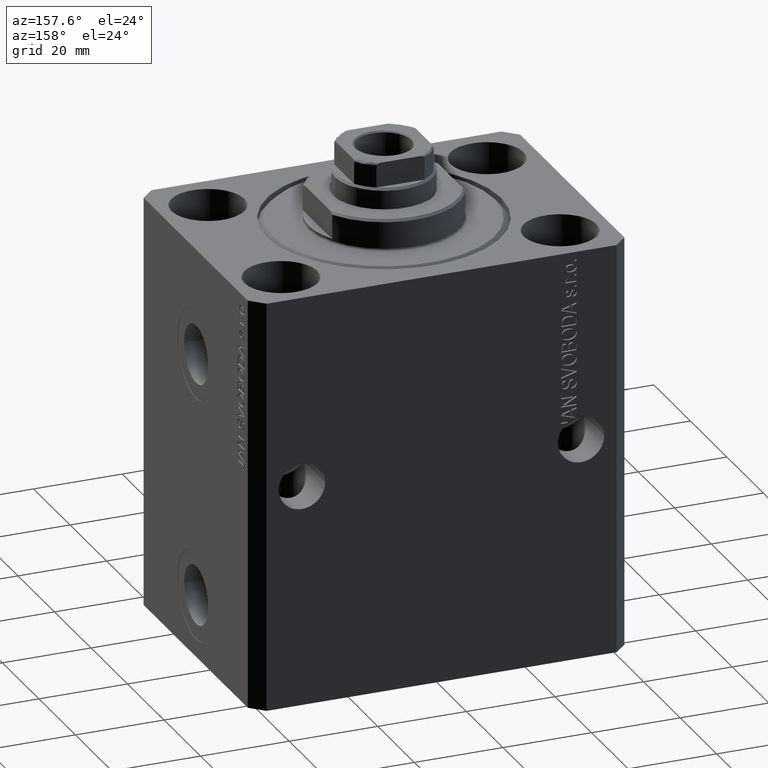
[diagram: clean part render]
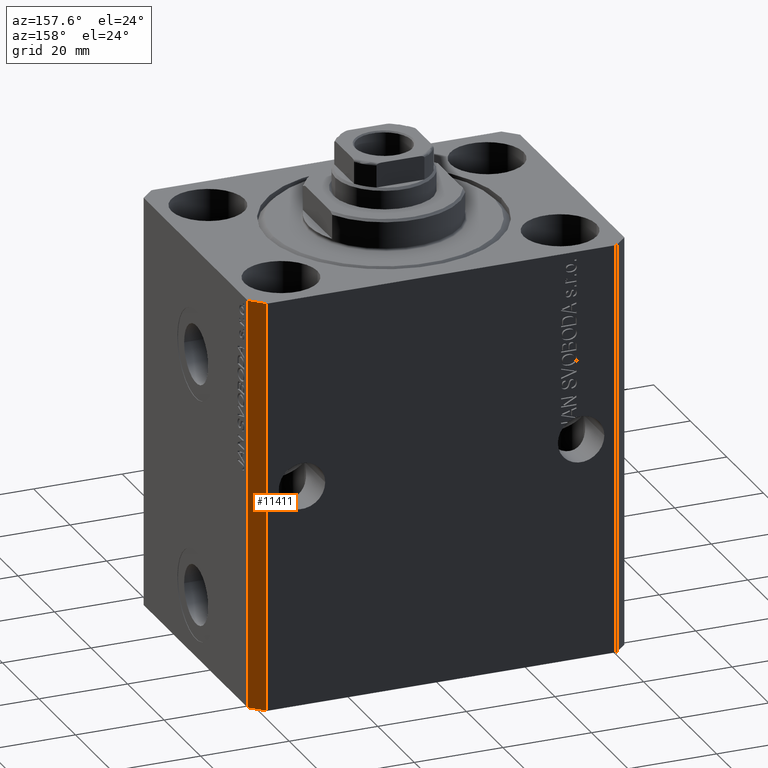
[diagram: same view with one face highlighted and labeled with its STEP entity id]
A machine part, auxiliary view. The second image highlights one B-rep face of the part: STEP entity #11411.
In plain terms, the highlighted planar face has unit normal (0.7071, 0.7071, 0).
Its self-contained STEP definition (entity closure, byte-faithful):
#197 = FACE_OUTER_BOUND ( 'NONE', #30869, .T. ) ;
#737 = VECTOR ( 'NONE', #21127, 1000.000000000000114 ) ;
#1114 = ORIENTED_EDGE ( 'NONE', *, *, #1553, .T. ) ;
#1553 = EDGE_CURVE ( 'NONE', #7915, #21331, #17737, .T. ) ;
#3417 = DIRECTION ( 'NONE',  ( 0.7071067811865594521, 0.7071067811865355823, -0.000000000000000000 ) ) ;
#5642 = CARTESIAN_POINT ( 'NONE',  ( 42.50000000000051870, 28.49999999999995381, -93.00000000000000000 ) ) ;
#7915 = VERTEX_POINT ( 'NONE', #35803 ) ;
#8543 = EDGE_CURVE ( 'NONE', #21169, #13259, #26988, .T. ) ;
#9953 = CARTESIAN_POINT ( 'NONE',  ( 42.50000000000051870, 28.49999999999995381, -93.00000000000000000 ) ) ;
#11411 = ADVANCED_FACE ( 'NONE', ( #197 ), #41939, .T. ) ;
#12257 = CARTESIAN_POINT ( 'NONE',  ( 39.50000000000056843, 31.50000000000000000, 0.000000000000000000 ) ) ;
#13259 = VERTEX_POINT ( 'NONE', #13830 ) ;
#13830 = CARTESIAN_POINT ( 'NONE',  ( 42.50000000000051870, 28.49999999999995381, 0.000000000000000000 ) ) ;
#14519 = DIRECTION ( 'NONE',  ( 0.000000000000000000, 0.000000000000000000, 1.000000000000000000 ) ) ;
#16794 = LINE ( 'NONE', #41326, #737 ) ;
#17737 = LINE ( 'NONE', #31741, #20077 ) ;
#17899 = ORIENTED_EDGE ( 'NONE', *, *, #8543, .F. ) ;
#18483 = VECTOR ( 'NONE', #30596, 1000.000000000000114 ) ;
#20077 = VECTOR ( 'NONE', #14519, 1000.000000000000000 ) ;
#21127 = DIRECTION ( 'NONE',  ( -0.7071067811865356934, 0.7071067811865594521, 0.000000000000000000 ) ) ;
#21169 = VERTEX_POINT ( 'NONE', #5642 ) ;
#21331 = VERTEX_POINT ( 'NONE', #12257 ) ;
#24159 = LINE ( 'NONE', #9953, #18483 ) ;
#26988 = LINE ( 'NONE', #40958, #39897 ) ;
#28423 = DIRECTION ( 'NONE',  ( -0.7071067811865355823, 0.7071067811865594521, 0.000000000000000000 ) ) ;
#29112 = EDGE_CURVE ( 'NONE', #13259, #21331, #16794, .T. ) ;
#30596 = DIRECTION ( 'NONE',  ( -0.7071067811865356934, 0.7071067811865594521, 0.000000000000000000 ) ) ;
#30869 = EDGE_LOOP ( 'NONE', ( #32668, #17899, #44826, #1114 ) ) ;
#30879 = DIRECTION ( 'NONE',  ( 0.000000000000000000, 0.000000000000000000, 1.000000000000000000 ) ) ;
#31741 = CARTESIAN_POINT ( 'NONE',  ( 39.50000000000056843, 31.50000000000000000, -93.00000000000000000 ) ) ;
#32668 = ORIENTED_EDGE ( 'NONE', *, *, #29112, .F. ) ;
#35227 = EDGE_CURVE ( 'NONE', #21169, #7915, #24159, .T. ) ;
#35803 = CARTESIAN_POINT ( 'NONE',  ( 39.50000000000056843, 31.50000000000000000, -93.00000000000000000 ) ) ;
#37088 = AXIS2_PLACEMENT_3D ( 'NONE', #38277, #3417, #28423 ) ;
#38277 = CARTESIAN_POINT ( 'NONE',  ( 42.50000000000051870, 28.49999999999995381, -93.00000000000000000 ) ) ;
#39897 = VECTOR ( 'NONE', #30879, 1000.000000000000000 ) ;
#40958 = CARTESIAN_POINT ( 'NONE',  ( 42.50000000000051870, 28.49999999999995381, -93.00000000000000000 ) ) ;
#41326 = CARTESIAN_POINT ( 'NONE',  ( 42.50000000000051870, 28.49999999999995381, 0.000000000000000000 ) ) ;
#41939 = PLANE ( 'NONE',  #37088 ) ;
#44826 = ORIENTED_EDGE ( 'NONE', *, *, #35227, .T. ) ;